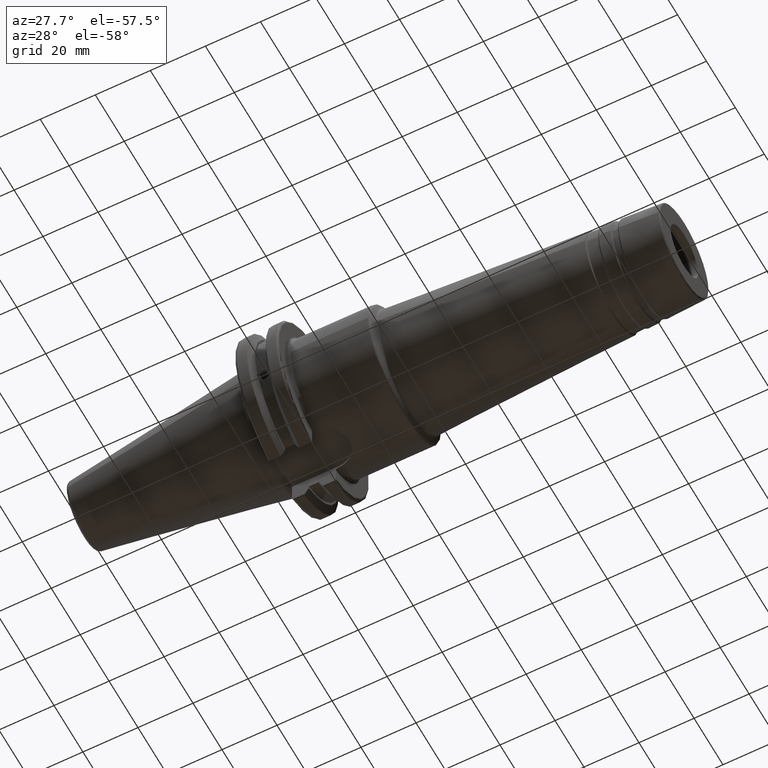
[diagram: clean part render]
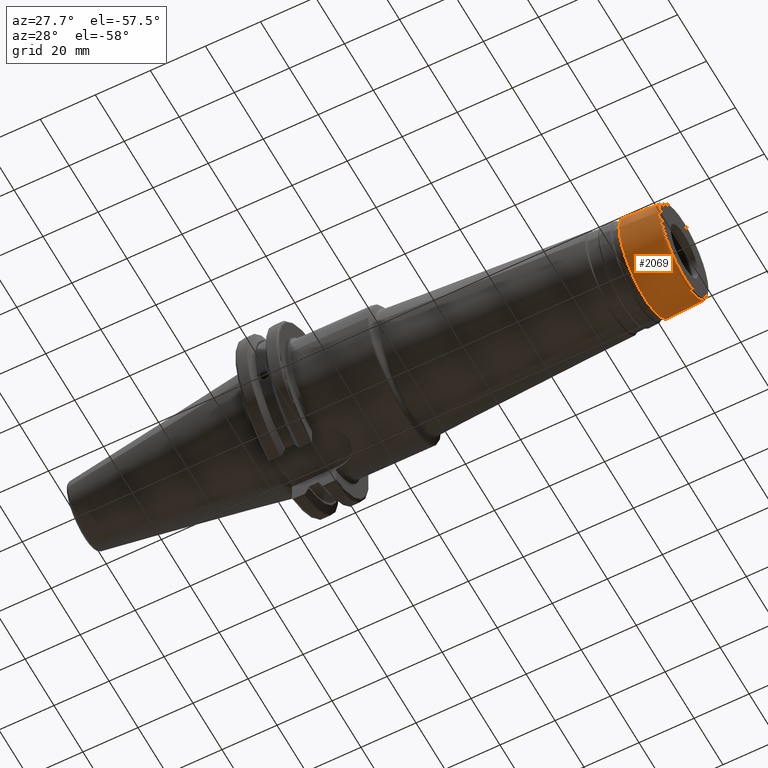
[diagram: same view with one face highlighted and labeled with its STEP entity id]
A machine part, auxiliary view. The second image highlights one B-rep face of the part: STEP entity #2069.
In plain terms, the highlighted conical surface has half-angle 3 deg.
Its self-contained STEP definition (entity closure, byte-faithful):
#104=CONICAL_SURFACE('',#2214,17.3848185972057,0.0523598775598296);
#180=FACE_OUTER_BOUND('',#288,.T.);
#288=EDGE_LOOP('',(#1393,#1394,#1395,#1396,#1397,#1398,#1399,#1400));
#407=LINE('',#3329,#506);
#506=VECTOR('',#2546,17.3848185972057);
#614=CIRCLE('',#2210,17.0248324840198);
#615=CIRCLE('',#2211,17.0248324840198);
#616=CIRCLE('',#2212,17.0248324840198);
#618=CIRCLE('',#2215,17.7575507230413);
#619=CIRCLE('',#2216,17.7575507230413);
#620=CIRCLE('',#2217,17.7575507230413);
#793=VERTEX_POINT('',#3319);
#794=VERTEX_POINT('',#3321);
#795=VERTEX_POINT('',#3323);
#796=VERTEX_POINT('',#3328);
#797=VERTEX_POINT('',#3330);
#798=VERTEX_POINT('',#3332);
#1039=EDGE_CURVE('',#793,#794,#614,.T.);
#1040=EDGE_CURVE('',#794,#795,#615,.T.);
#1041=EDGE_CURVE('',#795,#793,#616,.T.);
#1043=EDGE_CURVE('',#794,#796,#407,.T.);
#1044=EDGE_CURVE('',#797,#796,#618,.T.);
#1045=EDGE_CURVE('',#798,#797,#619,.T.);
#1046=EDGE_CURVE('',#796,#798,#620,.T.);
#1393=ORIENTED_EDGE('',*,*,#1041,.F.);
#1394=ORIENTED_EDGE('',*,*,#1040,.F.);
#1395=ORIENTED_EDGE('',*,*,#1043,.T.);
#1396=ORIENTED_EDGE('',*,*,#1044,.F.);
#1397=ORIENTED_EDGE('',*,*,#1045,.F.);
#1398=ORIENTED_EDGE('',*,*,#1046,.F.);
#1399=ORIENTED_EDGE('',*,*,#1043,.F.);
#1400=ORIENTED_EDGE('',*,*,#1039,.F.);
#2069=ADVANCED_FACE('',(#180),#104,.T.);
#2210=AXIS2_PLACEMENT_3D('',#3322,#2536,#2537);
#2211=AXIS2_PLACEMENT_3D('',#3324,#2538,#2539);
#2212=AXIS2_PLACEMENT_3D('',#3325,#2540,#2541);
#2214=AXIS2_PLACEMENT_3D('',#3327,#2544,#2545);
#2215=AXIS2_PLACEMENT_3D('',#3331,#2547,#2548);
#2216=AXIS2_PLACEMENT_3D('',#3333,#2549,#2550);
#2217=AXIS2_PLACEMENT_3D('',#3334,#2551,#2552);
#2536=DIRECTION('center_axis',(1.,0.,0.));
#2537=DIRECTION('ref_axis',(0.,-1.,3.06161699786838E-17));
#2538=DIRECTION('center_axis',(1.,0.,0.));
#2539=DIRECTION('ref_axis',(0.,-1.,3.06161699786838E-17));
#2540=DIRECTION('center_axis',(1.,0.,0.));
#2541=DIRECTION('ref_axis',(0.,-1.,3.06161699786838E-17));
#2544=DIRECTION('center_axis',(-1.,0.,0.));
#2545=DIRECTION('ref_axis',(0.,1.,0.));
#2546=DIRECTION('',(-0.998629534754574,-0.0523359562429436,-6.40930612932368E-18));
#2547=DIRECTION('center_axis',(-1.,0.,0.));
#2548=DIRECTION('ref_axis',(0.,-1.,3.06161699786838E-17));
#2549=DIRECTION('center_axis',(-1.,0.,0.));
#2550=DIRECTION('ref_axis',(0.,-1.,3.06161699786838E-17));
#2551=DIRECTION('center_axis',(-1.,0.,0.));
#2552=DIRECTION('ref_axis',(0.,-1.,3.06161699786838E-17));
#3319=CARTESIAN_POINT('',(149.526167978121,-2.08494066075748E-15,17.0248324840198));
#3321=CARTESIAN_POINT('',(149.526167978121,-17.0248324840198,-2.08494066075748E-15));
#3322=CARTESIAN_POINT('Origin',(149.526167978121,0.,-2.60617582594685E-15));
#3323=CARTESIAN_POINT('',(149.526167978121,17.0248324840198,-1.04247033037874E-15));
#3324=CARTESIAN_POINT('Origin',(149.526167978121,0.,-2.60617582594685E-15));
#3325=CARTESIAN_POINT('Origin',(149.526167978121,0.,-2.60617582594685E-15));
#3327=CARTESIAN_POINT('Origin',(142.657223746739,0.,0.));
#3328=CARTESIAN_POINT('',(135.545071105762,-17.7575507230413,-2.17467276536693E-15));
#3329=CARTESIAN_POINT('',(142.657223746739,-17.3848185972057,-2.12902624488253E-15));
#3330=CARTESIAN_POINT('',(135.545071105762,17.7575507230413,-5.43668191341732E-15));
#3331=CARTESIAN_POINT('Origin',(135.545071105762,0.,-2.71834095670866E-15));
#3332=CARTESIAN_POINT('',(135.545071105762,-2.17467276536693E-15,17.7575507230413));
#3333=CARTESIAN_POINT('Origin',(135.545071105762,0.,-2.71834095670866E-15));
#3334=CARTESIAN_POINT('Origin',(135.545071105762,0.,-2.71834095670866E-15));